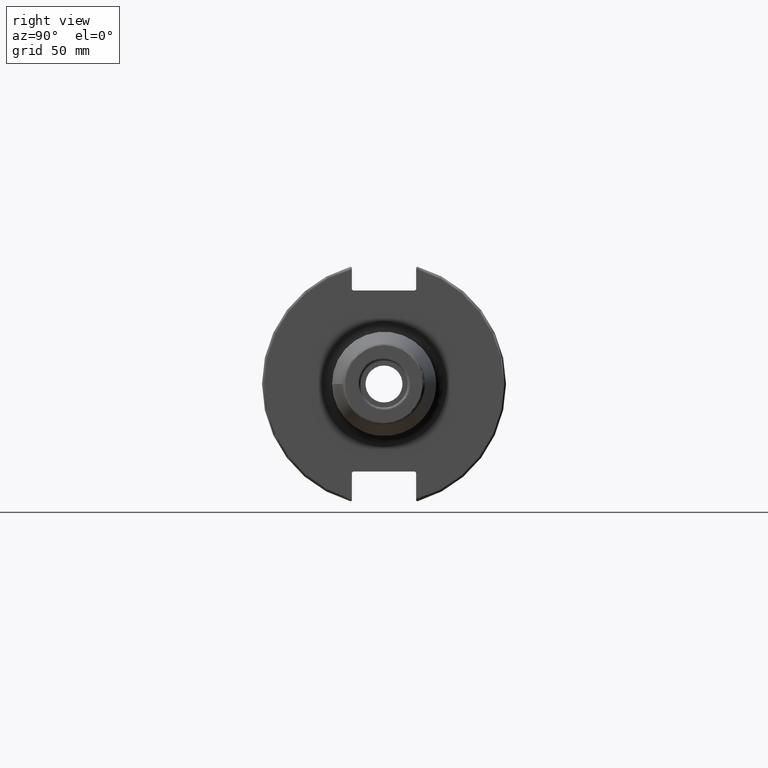
[diagram: clean part render]
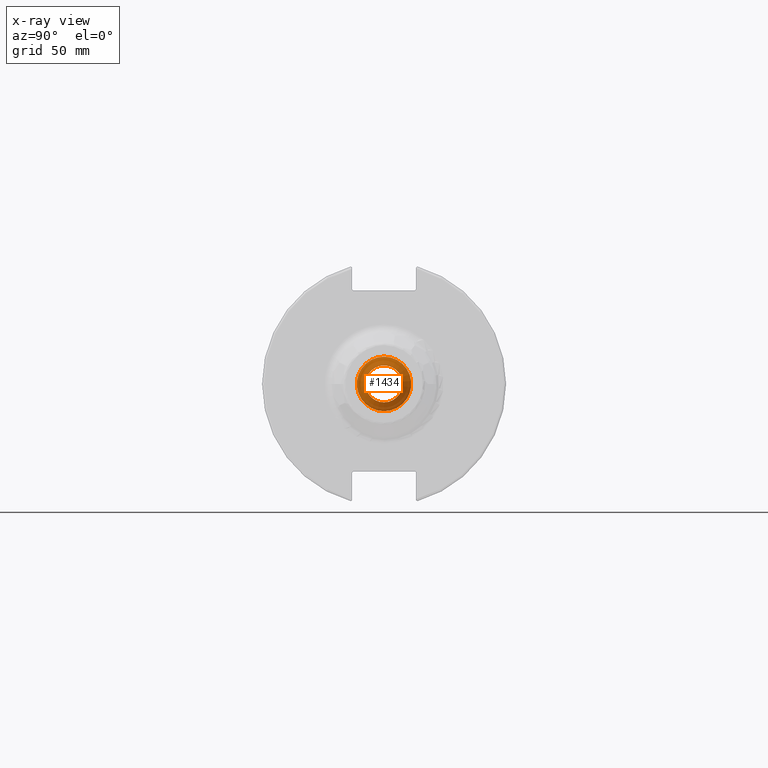
[diagram: x-ray — body ghosted, one internal face saturated and labeled with its STEP entity id]
A machine part, right view, then the same camera in x-ray: the body is ghosted and one INTERNAL B-rep face — a face not visible from any outside direction — is saturated and labeled: STEP entity #1434.
In plain terms, the highlighted conical surface has half-angle 59 deg.
Its self-contained STEP definition (entity closure, byte-faithful):
#72=CONICAL_SURFACE('',#1560,5.49275,1.02974425867665);
#97=LINE('',#2176,#187);
#187=VECTOR('',#1768,5.49275);
#355=FACE_OUTER_BOUND('',#441,.T.);
#441=EDGE_LOOP('',(#1026,#1027,#1028,#1029,#1030));
#551=CIRCLE('',#1558,7.458734);
#552=CIRCLE('',#1559,7.458734);
#553=CIRCLE('',#1561,10.9855);
#632=VERTEX_POINT('',#2168);
#633=VERTEX_POINT('',#2170);
#634=VERTEX_POINT('',#2174);
#787=EDGE_CURVE('',#633,#632,#551,.T.);
#788=EDGE_CURVE('',#632,#633,#552,.T.);
#789=EDGE_CURVE('',#634,#634,#553,.T.);
#790=EDGE_CURVE('',#634,#633,#97,.T.);
#1026=ORIENTED_EDGE('',*,*,#789,.T.);
#1027=ORIENTED_EDGE('',*,*,#790,.T.);
#1028=ORIENTED_EDGE('',*,*,#787,.T.);
#1029=ORIENTED_EDGE('',*,*,#788,.T.);
#1030=ORIENTED_EDGE('',*,*,#790,.F.);
#1434=ADVANCED_FACE('',(#355),#72,.F.);
#1558=AXIS2_PLACEMENT_3D('',#2171,#1760,#1761);
#1559=AXIS2_PLACEMENT_3D('',#2172,#1762,#1763);
#1560=AXIS2_PLACEMENT_3D('',#2173,#1764,#1765);
#1561=AXIS2_PLACEMENT_3D('',#2175,#1766,#1767);
#1760=DIRECTION('center_axis',(1.,0.,0.));
#1761=DIRECTION('ref_axis',(0.,0.,-1.));
#1762=DIRECTION('center_axis',(1.,0.,0.));
#1763=DIRECTION('ref_axis',(0.,0.,-1.));
#1764=DIRECTION('center_axis',(-1.,0.,0.));
#1765=DIRECTION('ref_axis',(0.,0.,1.));
#1766=DIRECTION('center_axis',(-1.,0.,0.));
#1767=DIRECTION('ref_axis',(0.,0.,1.));
#1768=DIRECTION('',(0.515038074910054,1.04972719113862E-16,0.857167300702112));
#2168=CARTESIAN_POINT('',(70.5190948019253,-9.13431471879154E-16,7.458734));
#2170=CARTESIAN_POINT('',(70.5190948019253,-9.13431471879153E-16,-7.45873399999999));
#2171=CARTESIAN_POINT('Origin',(70.5190948019253,0.,0.));
#2172=CARTESIAN_POINT('Origin',(70.5190948019253,0.,0.));
#2173=CARTESIAN_POINT('Origin',(71.7003771651636,0.,0.));
#2174=CARTESIAN_POINT('',(68.4,-1.34533574120332E-15,-10.9855));
#2175=CARTESIAN_POINT('Origin',(68.4,0.,0.));
#2176=CARTESIAN_POINT('',(71.7003771651636,-6.72667870601663E-16,-5.49275));